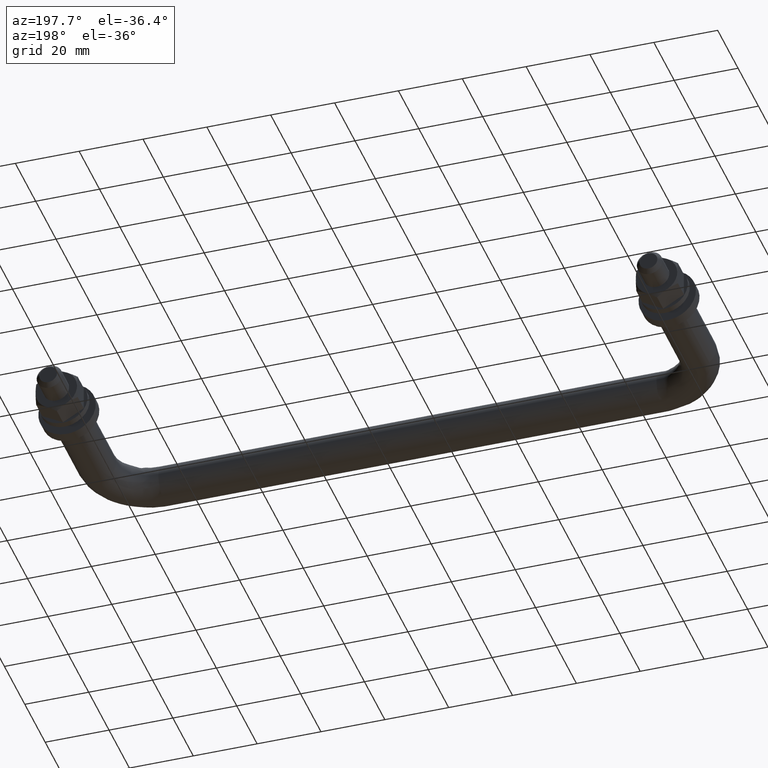
[diagram: clean part render]
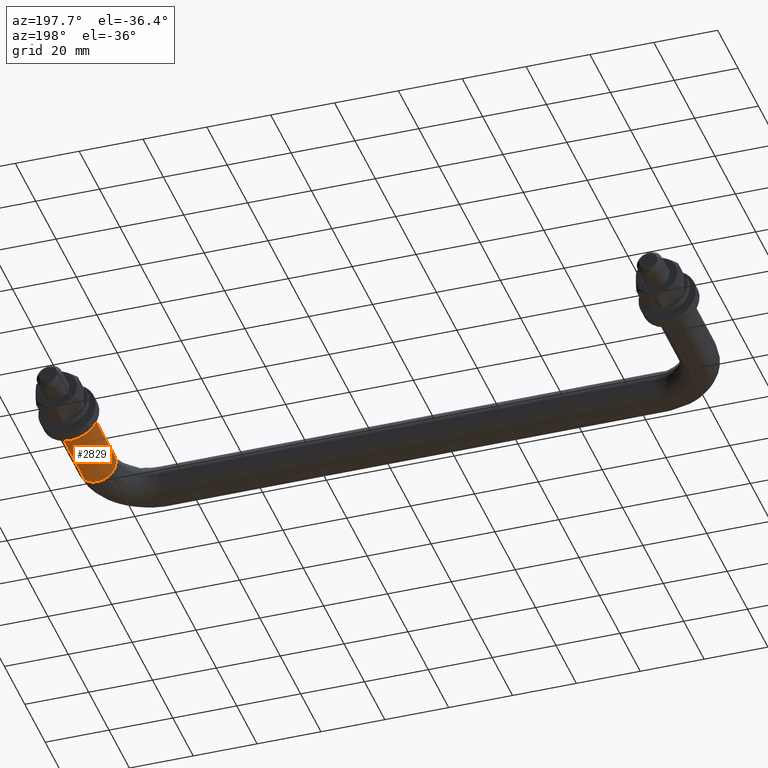
[diagram: same view with one face highlighted and labeled with its STEP entity id]
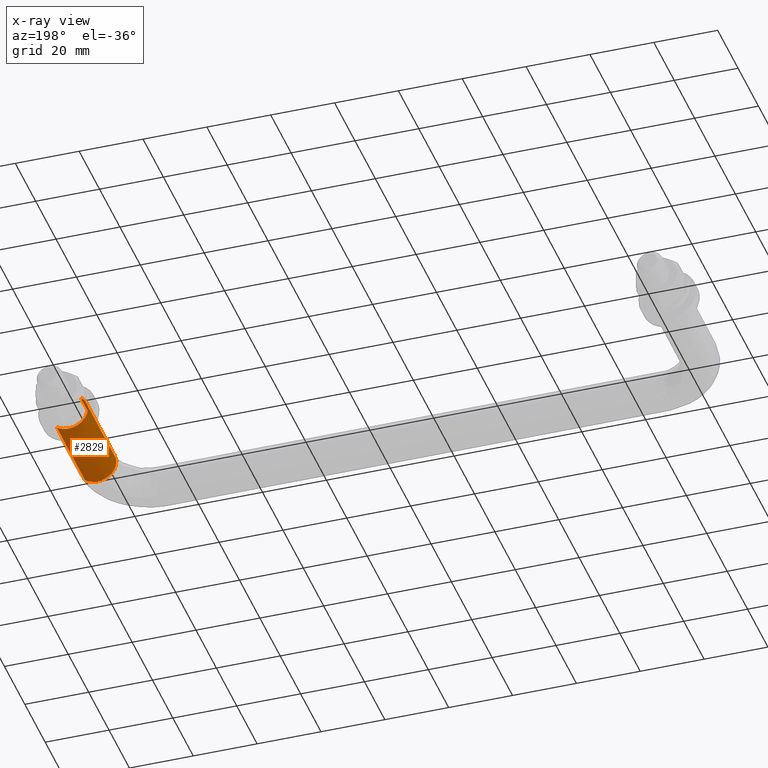
[diagram: x-ray of the same camera — body ghosted, the highlighted face saturated]
A machine part, auxiliary view. The second image highlights one B-rep face of the part: STEP entity #2829.
The next image is the same camera in x-ray: the body ghosted, the highlighted face saturated — about 0% of this face is hidden behind the body in this view.
In plain terms, the highlighted face is a freeform B-spline surface patch.
Its self-contained STEP definition (entity closure, byte-faithful):
#2716=CARTESIAN_POINT('',(191.735087819825710,-28.700000001172810,-4.695648941114484));
#2717=CARTESIAN_POINT('',(187.039438878711250,-28.700000001172814,-8.430736760940201));
#2718=CARTESIAN_POINT('',(183.304351058885490,-28.700000001172810,-3.735087819825715));
#2719=CARTESIAN_POINT('',(179.569263239059780,-28.700000001172814,0.960561121288768));
#2720=CARTESIAN_POINT('',(184.264912180174290,-28.700000001172810,4.695648941114484));
#2721=CARTESIAN_POINT('',(191.735087819825710,0.717500000029347,-4.695648941114484));
#2722=CARTESIAN_POINT('',(187.039438878711250,0.717500000029347,-8.430736760940201));
#2723=CARTESIAN_POINT('',(183.304351058885490,0.717500000029347,-3.735087819825715));
#2724=CARTESIAN_POINT('',(179.569263239059780,0.717500000029346,0.960561121288768));
#2725=CARTESIAN_POINT('',(184.264912180174290,0.717500000029346,4.695648941114484));
#2733=(BOUNDED_SURFACE()B_SPLINE_SURFACE(2,1,((#2716,#2721),(#2717,#2722),(#2718,#2723),(#2719,#2724),(#2720,#2725)),.UNSPECIFIED.,.F.,.F.,.U.)B_SPLINE_SURFACE_WITH_KNOTS((3,2,3),(2,2),(0.0,9.941125496954282,19.882250993908560),(0.0,29.417500001202161),.UNSPECIFIED.)GEOMETRIC_REPRESENTATION_ITEM()RATIONAL_B_SPLINE_SURFACE(((1.0,1.0),(0.707106781186548,0.707106781186548),(1.0,1.0),(0.707106781186548,0.707106781186548),(1.0,1.0)))REPRESENTATION_ITEM('')SURFACE());
#2734=CARTESIAN_POINT('',(187.924611933301410,-27.999977257682200,-5.999526367917516));
#2735=VERTEX_POINT('',#2734);
#2736=CARTESIAN_POINT('',(191.735087819828210,-27.999986919513621,-4.695648941111090));
#2737=VERTEX_POINT('',#2736);
#2738=CARTESIAN_POINT('',(187.924611933301430,-27.999977257682193,-5.999526367917516));
#2739=CARTESIAN_POINT('',(187.962304478833370,-27.999977328230433,-5.999999999994858));
#2740=CARTESIAN_POINT('',(188.000000000000110,-27.999977399670730,-5.999999999994873));
#2741=CARTESIAN_POINT('',(190.095293800532800,-27.999981370657189,-5.999999999995774));
#2742=CARTESIAN_POINT('',(191.735087819828180,-27.999986919513624,-4.695648941111090));
#2750=(BOUNDED_CURVE()B_SPLINE_CURVE(2,(#2738,#2739,#2740,#2741,#2742),.UNSPECIFIED.,.F.,.U.)B_SPLINE_CURVE_WITH_KNOTS((3,2,3),(0.247784535489266,0.250000000000000,0.357863877391600),.UNSPECIFIED.)CURVE()GEOMETRIC_REPRESENTATION_ITEM()RATIONAL_B_SPLINE_CURVE((0.994854847036074,0.997404421873137,1.0,0.873629607028299,0.856305618644021))REPRESENTATION_ITEM(''));
#2751=EDGE_CURVE('',#2735,#2737,#2750,.T.);
#2752=ORIENTED_EDGE('',*,*,#2751,.F.);
#2753=CARTESIAN_POINT('',(182.0,-28.0,0.0));
#2754=VERTEX_POINT('',#2753);
#2755=CARTESIAN_POINT('',(182.0,-28.0,0.0));
#2756=CARTESIAN_POINT('',(182.000000000000030,-27.999988628841098,-5.925079651262719));
#2757=CARTESIAN_POINT('',(187.924611933301410,-27.999977257682197,-5.999526367917516));
#2765=(BOUNDED_CURVE()B_SPLINE_CURVE(2,(#2755,#2756,#2757),.UNSPECIFIED.,.F.,.U.)B_SPLINE_CURVE_WITH_KNOTS((3,3),(0.0,0.247784535489267),.UNSPECIFIED.)CURVE()GEOMETRIC_REPRESENTATION_ITEM()RATIONAL_B_SPLINE_CURVE((1.0,0.709702359313410,0.994854847036074))REPRESENTATION_ITEM(''));
#2766=EDGE_CURVE('',#2754,#2735,#2765,.T.);
#2767=ORIENTED_EDGE('',*,*,#2766,.F.);
#2768=CARTESIAN_POINT('',(184.264912180171190,-28.0,4.695648941111987));
#2769=VERTEX_POINT('',#2768);
#2770=CARTESIAN_POINT('',(184.264912180171190,-28.0,4.695648941111987));
#2771=CARTESIAN_POINT('',(182.000000000000030,-27.999999999999996,2.894056444900479));
#2772=CARTESIAN_POINT('',(182.0,-28.0,0.0));
#2780=(BOUNDED_CURVE()B_SPLINE_CURVE(2,(#2770,#2771,#2772),.UNSPECIFIED.,.F.,.U.)B_SPLINE_CURVE_WITH_KNOTS((3,3),(0.857863877391648,1.0),.UNSPECIFIED.)CURVE()GEOMETRIC_REPRESENTATION_ITEM()RATIONAL_B_SPLINE_CURVE((0.856305618644005,0.833477174158305,1.0))REPRESENTATION_ITEM(''));
#2781=EDGE_CURVE('',#2769,#2754,#2780,.T.);
#2782=ORIENTED_EDGE('',*,*,#2781,.F.);
#2783=CARTESIAN_POINT('',(184.264912180171190,2.452205E-014,4.695648941112008));
#2784=VERTEX_POINT('',#2783);
#2785=CARTESIAN_POINT('',(184.264912180171190,-28.0,4.695648941111987));
#2786=CARTESIAN_POINT('',(184.264912180171190,2.452205E-014,4.695648941112008));
#2787=QUASI_UNIFORM_CURVE('',1,(#2785,#2786),.UNSPECIFIED.,.F.,.U.);
#2788=EDGE_CURVE('',#2769,#2784,#2787,.T.);
#2789=ORIENTED_EDGE('',*,*,#2788,.T.);
#2790=CARTESIAN_POINT('',(182.0,2.428613E-014,0.0));
#2791=VERTEX_POINT('',#2790);
#2792=CARTESIAN_POINT('',(184.264912180171170,2.452205E-014,4.695648941112008));
#2793=CARTESIAN_POINT('',(182.000000000000030,2.428613E-014,2.894056444900524));
#2794=CARTESIAN_POINT('',(182.0,2.428613E-014,0.0));
#2802=(BOUNDED_CURVE()B_SPLINE_CURVE(2,(#2792,#2793,#2794),.UNSPECIFIED.,.F.,.U.)B_SPLINE_CURVE_WITH_KNOTS((3,3),(0.857863877391646,1.0),.UNSPECIFIED.)CURVE()GEOMETRIC_REPRESENTATION_ITEM()RATIONAL_B_SPLINE_CURVE((0.856305618644006,0.833477174158303,1.0))REPRESENTATION_ITEM(''));
#2803=EDGE_CURVE('',#2784,#2791,#2802,.T.);
#2804=ORIENTED_EDGE('',*,*,#2803,.T.);
#2805=CARTESIAN_POINT('',(191.735087819828810,2.485512E-014,-4.695648941112017));
#2806=VERTEX_POINT('',#2805);
#2807=CARTESIAN_POINT('',(182.0,2.428613E-014,0.0));
#2808=CARTESIAN_POINT('',(182.000000000000060,2.428613E-014,-6.0));
#2809=CARTESIAN_POINT('',(188.0,2.428613E-014,-6.0));
#2810=CARTESIAN_POINT('',(190.095293800533740,2.428613E-014,-6.0));
#2811=CARTESIAN_POINT('',(191.735087819828750,2.485512E-014,-4.695648941112017));
#2819=(BOUNDED_CURVE()B_SPLINE_CURVE(2,(#2807,#2808,#2809,#2810,#2811),.UNSPECIFIED.,.F.,.U.)B_SPLINE_CURVE_WITH_KNOTS((3,2,3),(0.0,0.250000000000000,0.357863877391645),.UNSPECIFIED.)CURVE()GEOMETRIC_REPRESENTATION_ITEM()RATIONAL_B_SPLINE_CURVE((1.0,0.707106781186548,1.0,0.873629607028246,0.856305618644006))REPRESENTATION_ITEM(''));
#2820=EDGE_CURVE('',#2791,#2806,#2819,.T.);
#2821=ORIENTED_EDGE('',*,*,#2820,.T.);
#2822=CARTESIAN_POINT('',(191.735087819828210,-27.999986919513621,-4.695648941111090));
#2823=CARTESIAN_POINT('',(191.735087819828810,2.485512E-014,-4.695648941112017));
#2824=QUASI_UNIFORM_CURVE('',1,(#2822,#2823),.UNSPECIFIED.,.F.,.U.);
#2825=EDGE_CURVE('',#2737,#2806,#2824,.T.);
#2826=ORIENTED_EDGE('',*,*,#2825,.F.);
#2827=EDGE_LOOP('',(#2752,#2767,#2782,#2789,#2804,#2821,#2826));
#2828=FACE_OUTER_BOUND('',#2827,.T.);
#2829=ADVANCED_FACE('',(#2828),#2733,.T.);